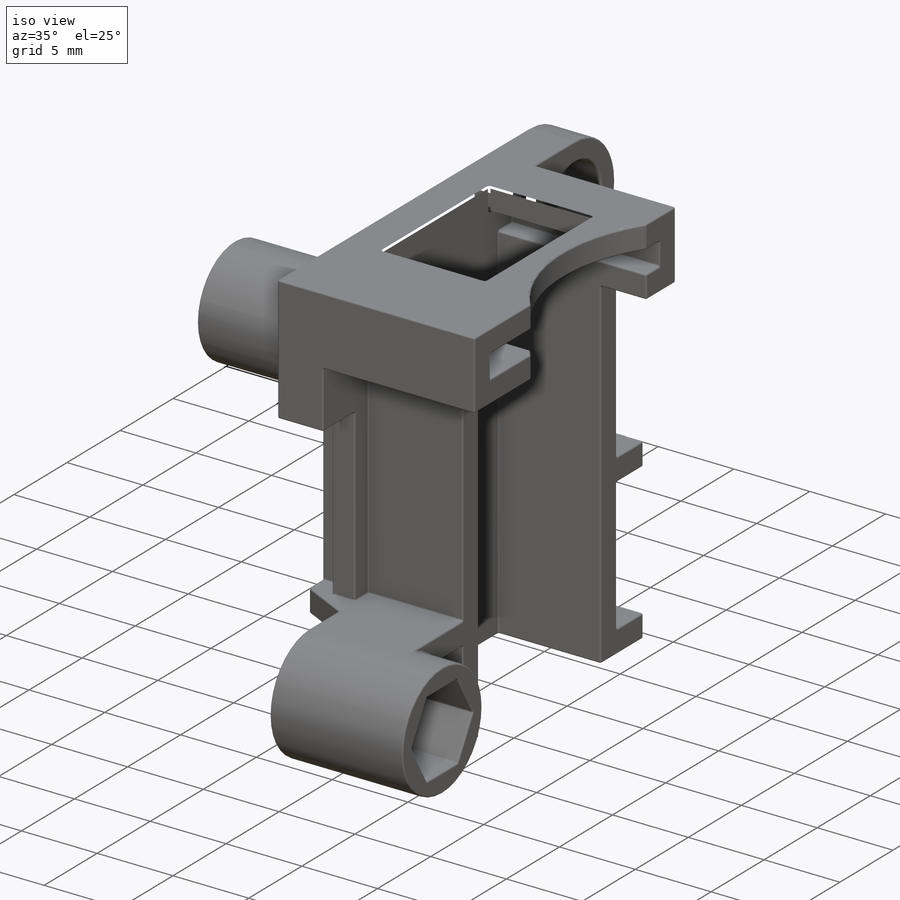
[diagram: iso view]
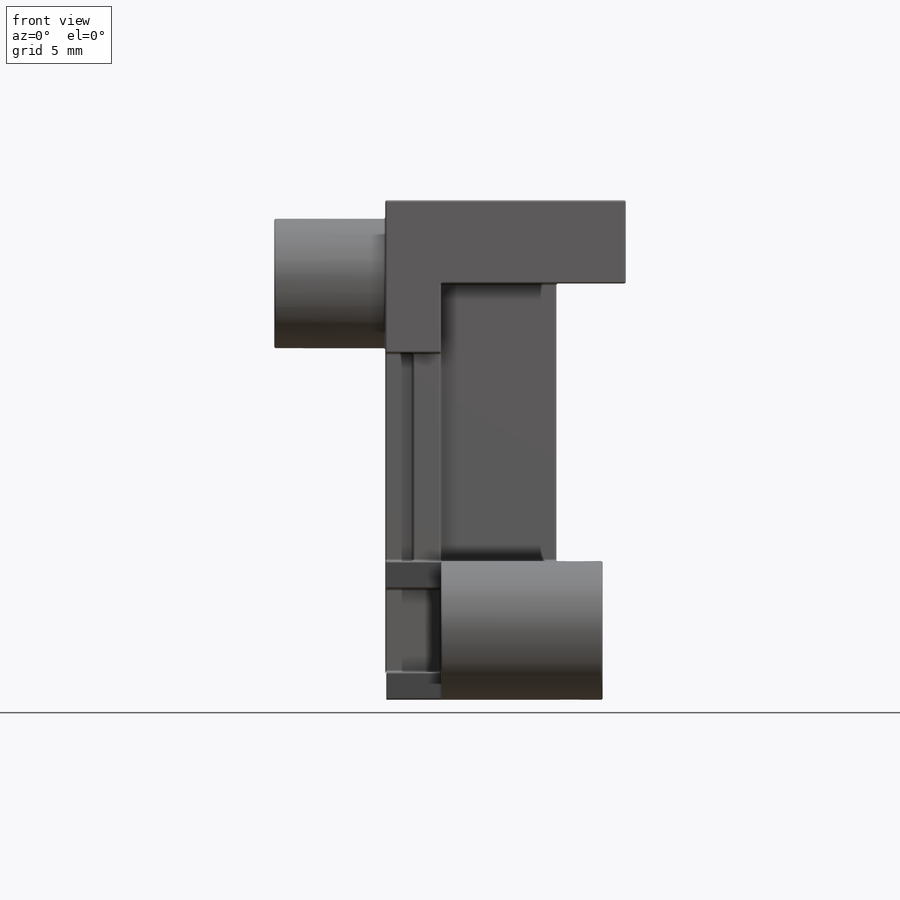
[diagram: front view]
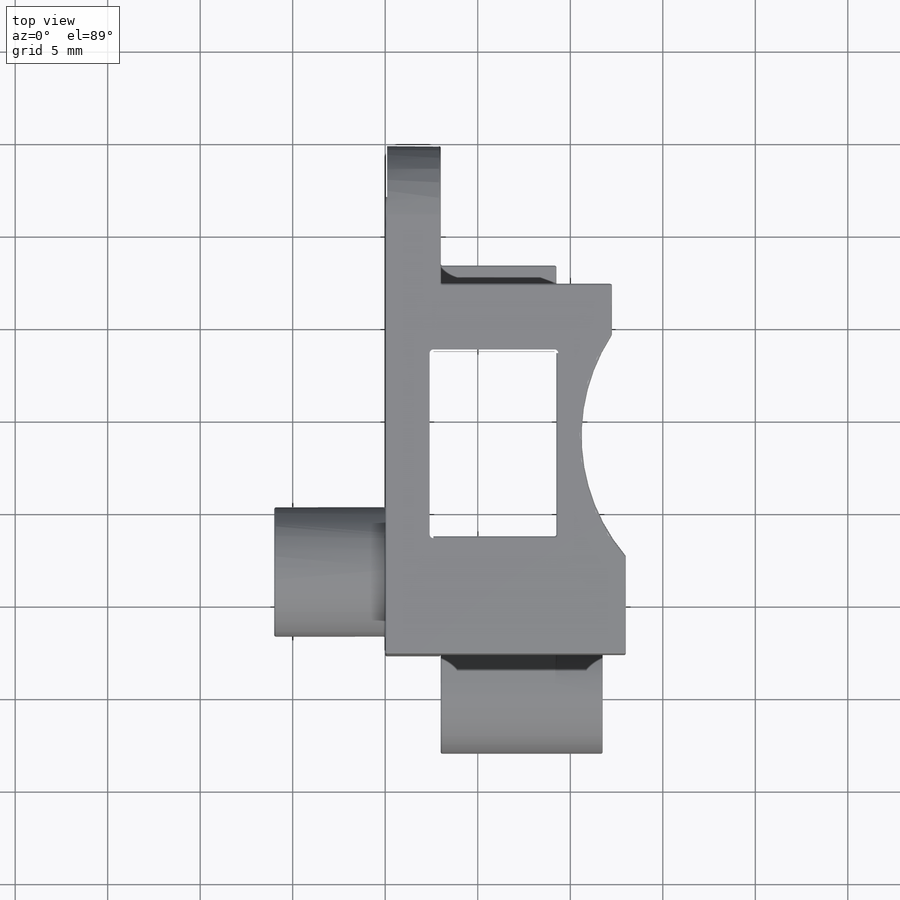
[diagram: top view]
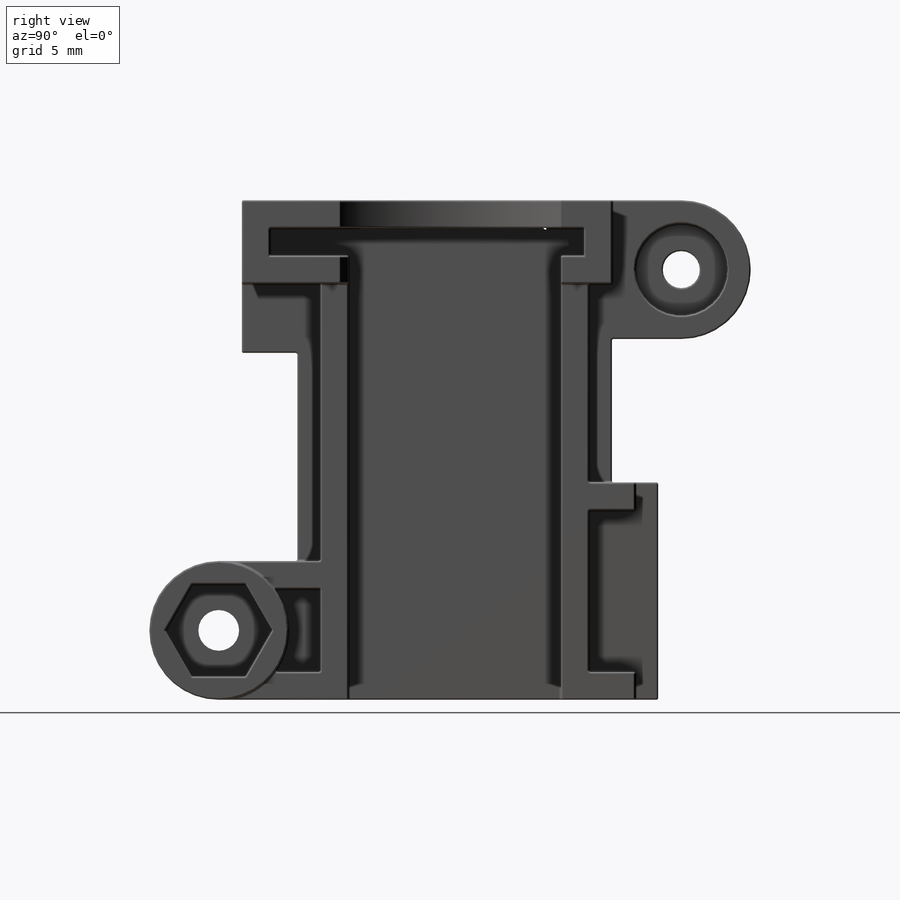
[diagram: right view]
SOLIDWORKS PART (.sldprt)
format: sldprt  version: not decoded by parser v0  size: 2,106,368 bytes
history: native  units: mm
features: sketch x32, cut_extrude x23, fillet x10, extrude x8, material x1 (+11 scaffold rows collapsed)
feature tree (85):
  scaffold x11  (default folders/planes/origin — collapsed)
  material  "Material <not specified>"
  sketch  "Sketch2"  dims[c1.D1=~37.302999mm c1.D2=~25.766953mm c2.D1=27.0mm c2.D2=20.0mm c2.D3=~12.716866mm c2.D4=~1.847058mm c3.D3=3.0mm c3.D4=8.25mm c3.D5=11.0mm c3.D6=~9.284518mm c3.D7=~7.842863mm c4.D6=2.5mm c4.D7=11.75mm c4.D1=27.0mm c4.D5=19.5mm c4.D8=0.0mm]
  extrude  "Boss-Extrude1"  Depth=3mm
  sketch  "Sketch3"  dims[D1=2.75mm D2=6.25mm D3=10.75mm D4=7.5mm D5=2.5mm D6=1.5mm]
  extrude  "Boss-Extrude2"  Depth=7.5mm
  sketch  "Sketch5"  dims[D1=7.5mm]
  sketch  "Sketch7"
  cut_extrude  "Cut-Extrude1"  Depth=8.75mm
  sketch  "Sketch8"
  cut_extrude  "Cut-Extrude2"  Depth=8.75mm
  sketch  "Sketch9"  dims[D1=7.5mm D2=~1.148183mm]
  extrude  "Boss-Extrude4"  Depth=2.5mm
  sketch  "Sketch10"  dims[D1=3.75mm]
  cut_extrude  "Cut-Extrude3"  Depth=2.5mm
  sketch  "Sketch11"  dims[D1=1.5mm]
  cut_extrude  "Cut-Extrude4"  Depth=6mm
  sketch  "Sketch12"  dims[D1=~2.849802mm D2=0.0mm]
  cut_extrude  "Cut-Extrude5"  Depth=6mm
  sketch  "Sketch13"  dims[D1=5.0mm]
  cut_extrude  "Cut-Extrude6"  Depth=1mm
  sketch  "Sketch14"  dims[D1=2.0mm]
  cut_extrude  "Cut-Extrude7"  Depth=2mm
  sketch  "Sketch15"  dims[D1=1.5mm D2=1.5mm D3=1.5mm D4=1.5mm D5=1.5mm D6=1.5mm D7=1.5mm D8=1.5mm D9=1.5mm D10=1.5mm D11=1.5mm D12=1.5mm D13=1.25mm D14=1.25mm D15=1.25mm]
  extrude  "Boss-Extrude5"  Depth=6.25mm
  sketch  "Sketch16"  dims[D1=4.5mm]
  extrude  "Boss-Extrude6"  Depth=4.5mm
  sketch  "Sketch17"  dims[D1=4.5mm D2=2.75mm]
  cut_extrude  "Cut-Extrude8"  Depth=1.5mm
  sketch  "Sketch18"  dims[c1.D1=~9.930722mm c1.D2=10.0mm c2.D1=3.0mm c2.D3=1.5mm]
  cut_extrude  "Cut-Extrude10"  Depth=20mm
  sketch  "Sketch19"  dims[D1=4.9426mm D2=7.75mm]
  extrude  "Boss-Extrude7"  Depth=3mm
  sketch  "Sketch20"  dims[D1=4.5mm]
  cut_extrude  "Cut-Extrude11"  Depth=1.5mm
  sketch  "Sketch21"  dims[D1=2.0mm]
  cut_extrude  "Cut-Extrude12"  Depth=3mm
  sketch  "Sketch22"  dims[D1=7.5mm D2=4.5mm]
  extrude  "Boss-Extrude8"  Depth=5mm
  sketch  "Sketch23"  dims[D1=7.0mm D2=5.0mm D3=4.5mm D4=4.5mm]
  extrude  "Boss-Extrude9"  Depth=6mm
  sketch  "Sketch24"  dims[c1.D1=~4.07738mm c1.D2=~4.07738mm c2.D1=0.0mm c2.D2=1.5mm c2.D3=1.5mm c2.D4=1.5mm c3.D1=~2.931477mm c3.D2=~5.735128mm c4.D1=0.0mm c4.D2=1.5mm c4.D3=1.5mm c4.D4=1.25mm]
  cut_extrude  "Cut-Extrude13"  Depth=3mm
  sketch  "Sketch25"  dims[c1.D1=~11.207926mm c1.D2=~1.773946mm c2.D1=1.25mm c2.D2=~7.228082mm c2.D3=~15.642312mm c3.D2=~9.489175mm c3.D3=~13.047615mm c4.D2=0.0mm c4.D3=1.5mm c4.D4=2.75mm c4.D5=1.5mm c4.D6=1.5mm c4.D7=1.5mm c4.D8=1.5mm c4.D9=1.5mm c4.D10=1.5mm c4.D11=1.5mm c4.D12=~1.674744mm c4.D13=~2.750694mm c5.D12=1.0mm c5.D13=2.0mm c5.D14=0.5mm c5.D15=~7.286939mm c5.D16=1.5mm c6.D15=0.0mm c6.D16=1.25mm c6.D2=2.75mm c6.D8=1.5mm c6.D9=1.5mm c6.D10=1.5mm c6.D11=2.0mm c6.D14=2.0mm c7.D11=~1.806188mm c7.D12=~2.731926mm c8.D11=2.0mm c8.D12=1.0mm c8.D13=0.5mm c8.D5=~20.587966mm]
  cut_extrude  "Cut-Extrude18"  Depth=1.5mm
  sketch  "Sketch26"  dims[c1.D1=~8.420048mm c1.D2=~2.067237mm c2.D1=~11.532872mm c2.D2=~2.033416mm c3.D1=1.25mm c3.D2=0.0mm c3.D3=1.25mm c3.D4=0.0mm]
  cut_extrude  "Cut-Extrude19"  Depth=1.5mm
  sketch  "Sketch27"  dims[D2=11.9mm D1=0.0mm]
  cut_extrude  "Cut-Extrude20"  Depth=0.5mm
  fillet  "Fillet5"  Radius=0.1mm
  fillet  "Fillet6"  Radius=0.1mm
  fillet  "Fillet7"  Radius=0.1mm
  sketch  "Sketch29"  dims[D1=0.0mm]
  cut_extrude  "Cut-Extrude21"  Depth=1mm
  sketch  "Sketch30"  dims[c1.D1=~4.879511mm c1.D2=~11.647341mm c2.D1=~11.647341mm c2.D2=~4.879511mm]
  cut_extrude  "Cut-Extrude22"  Depth=0.75mm
  sketch  "Sketch32"  dims[D1=5.0mm]
  cut_extrude  "Cut-Extrude23"  [1 undecoded]
  sketch  "Sketch33"  dims[c1.D1=~3.399786mm c1.D2=1.25mm c2.D1=1.25mm]
  cut_extrude  "Cut-Extrude24"  [1 undecoded]
  sketch  "Sketch34"  dims[D1=~7.599086mm]
  cut_extrude  "Cut-Extrude25"  [1 undecoded]
  fillet  "Fillet8"  Radius=0.1mm
  fillet  "Fillet9"  Radius=0.1mm
  sketch  "Sketch35"  dims[c1.D1=~7.897783mm c1.D2=~5.775138mm c2.D1=10.0mm c2.D2=6.75mm c2.D3=6.35mm c2.D4=2.5mm]
  cut_extrude  "Cut-Extrude26"  Depth=2mm
  fillet  "Fillet10"  Radius=0.1mm
  fillet  "Fillet11"  Radius=0.1mm
  fillet  "Fillet12"  Radius=0.1mm
  sketch  "Sketch36"  dims[D1=7.5mm]
  cut_extrude  "Cut-Extrude27"  Depth=1mm
  fillet  "Fillet13"  Radius=0.1mm
  sketch  "Sketch38"  dims[D1=~10.331321mm]
  cut_extrude  "Cut-Extrude29"  [1 undecoded]
  fillet  "Fillet14"  Radius=0.1mm
decode coverage: 67 of 73 modeling features carry decoded parameters
note: ~ marks probable driven/reference dimensions
note: 4 parameter values undecoded
summary: no parameter record found for 4 features
note: suppression state not decoded; provenance and decode notes live in map.json
